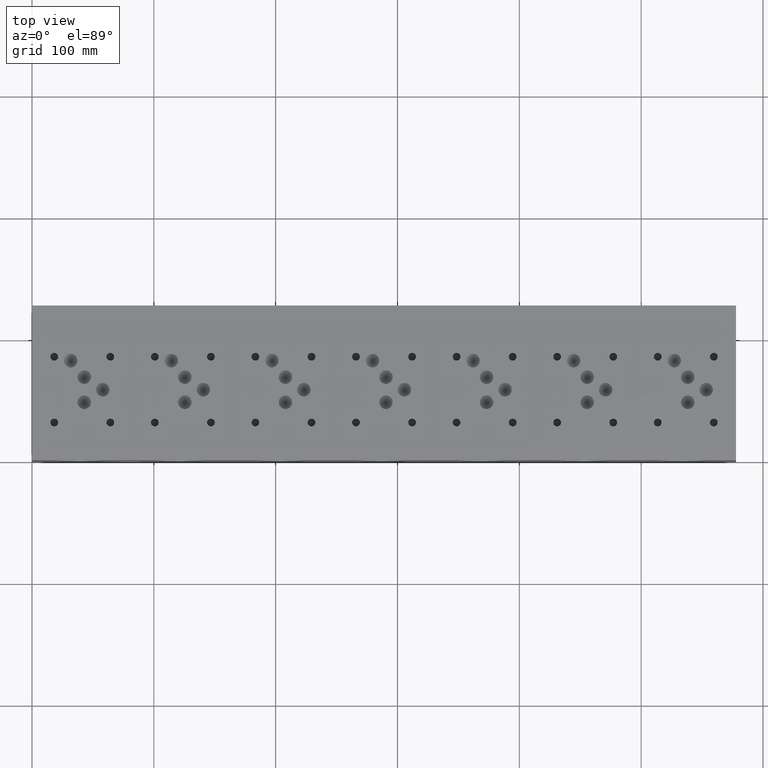
[diagram: clean part render]
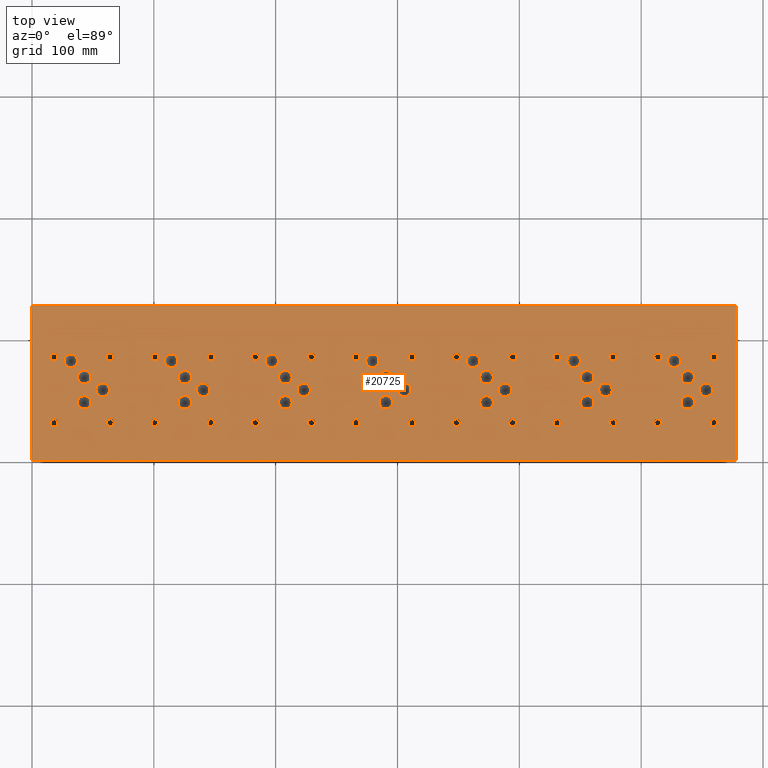
[diagram: same view with one face highlighted and labeled with its STEP entity id]
A machine part, top view. The second image highlights one B-rep face of the part: STEP entity #20725.
In plain terms, the highlighted planar face has unit normal (0, 0, 1).
Its self-contained STEP definition (entity closure, byte-faithful):
#960=CIRCLE('',#21827,5.55625);
#961=CIRCLE('',#21828,5.55625);
#964=CIRCLE('',#21833,5.55625);
#965=CIRCLE('',#21834,5.55625);
#968=CIRCLE('',#21839,5.5626);
#969=CIRCLE('',#21840,5.5626);
#972=CIRCLE('',#21845,5.5626);
#973=CIRCLE('',#21846,5.5626);
#976=CIRCLE('',#21851,5.5626);
#977=CIRCLE('',#21852,5.5626);
#980=CIRCLE('',#21857,5.5626);
#981=CIRCLE('',#21858,5.5626);
#984=CIRCLE('',#21863,5.5626);
#985=CIRCLE('',#21864,5.5626);
#988=CIRCLE('',#21869,5.5626);
#989=CIRCLE('',#21870,5.5626);
#992=CIRCLE('',#21875,5.5626);
#993=CIRCLE('',#21876,5.5626);
#996=CIRCLE('',#21881,5.5626);
#997=CIRCLE('',#21882,5.5626);
#1000=CIRCLE('',#21887,5.5626);
#1001=CIRCLE('',#21888,5.5626);
#1004=CIRCLE('',#21893,5.5626);
#1005=CIRCLE('',#21894,5.5626);
#1008=CIRCLE('',#21899,5.5626);
#1009=CIRCLE('',#21900,5.5626);
#1012=CIRCLE('',#21905,5.5626);
#1013=CIRCLE('',#21906,5.5626);
#1016=CIRCLE('',#21911,5.5626);
#1017=CIRCLE('',#21912,5.5626);
#1020=CIRCLE('',#21917,5.5626);
#1021=CIRCLE('',#21918,5.5626);
#1024=CIRCLE('',#21923,5.5626);
#1025=CIRCLE('',#21924,5.5626);
#1028=CIRCLE('',#21929,5.5626);
#1029=CIRCLE('',#21930,5.5626);
#1032=CIRCLE('',#21935,5.5626);
#1033=CIRCLE('',#21936,5.5626);
#1036=CIRCLE('',#21941,5.5626);
#1037=CIRCLE('',#21942,5.5626);
#1040=CIRCLE('',#21947,5.5626);
#1041=CIRCLE('',#21948,5.5626);
#1044=CIRCLE('',#21953,5.5626);
#1045=CIRCLE('',#21954,5.5626);
#1048=CIRCLE('',#21959,5.5626);
#1049=CIRCLE('',#21960,5.5626);
#1052=CIRCLE('',#21965,5.5626);
#1053=CIRCLE('',#21966,5.5626);
#1056=CIRCLE('',#21971,5.5626);
#1057=CIRCLE('',#21972,5.5626);
#1060=CIRCLE('',#21977,5.5626);
#1061=CIRCLE('',#21978,5.5626);
#1064=CIRCLE('',#21983,5.5626);
#1065=CIRCLE('',#21984,5.5626);
#1068=CIRCLE('',#21989,5.5626);
#1069=CIRCLE('',#21990,5.5626);
#1075=CIRCLE('',#21999,3.175);
#1076=CIRCLE('',#22000,3.175);
#1082=CIRCLE('',#22010,3.175);
#1083=CIRCLE('',#22011,3.175);
#1089=CIRCLE('',#22021,3.175);
#1090=CIRCLE('',#22022,3.175);
#1096=CIRCLE('',#22032,3.175);
#1097=CIRCLE('',#22033,3.175);
#1103=CIRCLE('',#22043,3.175);
#1104=CIRCLE('',#22044,3.175);
#1110=CIRCLE('',#22054,3.175);
#1111=CIRCLE('',#22055,3.175);
#1117=CIRCLE('',#22065,3.175);
#1118=CIRCLE('',#22066,3.175);
#1124=CIRCLE('',#22076,3.175);
#1125=CIRCLE('',#22077,3.175);
#1131=CIRCLE('',#22087,3.175);
#1132=CIRCLE('',#22088,3.175);
#1138=CIRCLE('',#22098,3.175);
#1139=CIRCLE('',#22099,3.175);
#1145=CIRCLE('',#22109,3.175);
#1146=CIRCLE('',#22110,3.175);
#1152=CIRCLE('',#22120,3.175);
#1153=CIRCLE('',#22121,3.175);
#1159=CIRCLE('',#22131,3.175);
#1160=CIRCLE('',#22132,3.175);
#1166=CIRCLE('',#22142,3.175);
#1167=CIRCLE('',#22143,3.175);
#1173=CIRCLE('',#22153,3.175);
#1174=CIRCLE('',#22154,3.175);
#1180=CIRCLE('',#22164,3.175);
#1181=CIRCLE('',#22165,3.175);
#1187=CIRCLE('',#22175,3.175);
#1188=CIRCLE('',#22176,3.175);
#1194=CIRCLE('',#22186,3.175);
#1195=CIRCLE('',#22187,3.175);
#1201=CIRCLE('',#22197,3.175);
#1202=CIRCLE('',#22198,3.175);
#1208=CIRCLE('',#22208,3.175);
#1209=CIRCLE('',#22209,3.175);
#1215=CIRCLE('',#22219,3.175);
#1216=CIRCLE('',#22220,3.175);
#1222=CIRCLE('',#22230,3.175);
#1223=CIRCLE('',#22231,3.175);
#1229=CIRCLE('',#22241,3.175);
#1230=CIRCLE('',#22242,3.175);
#1236=CIRCLE('',#22252,3.175);
#1237=CIRCLE('',#22253,3.175);
#1243=CIRCLE('',#22263,3.175);
#1244=CIRCLE('',#22264,3.175);
#1250=CIRCLE('',#22274,3.175);
#1251=CIRCLE('',#22275,3.175);
#1257=CIRCLE('',#22285,3.175);
#1258=CIRCLE('',#22286,3.175);
#1264=CIRCLE('',#22296,3.175);
#1265=CIRCLE('',#22297,3.175);
#1877=FACE_BOUND('',#4267,.T.);
#1878=FACE_BOUND('',#4268,.T.);
#1879=FACE_BOUND('',#4269,.T.);
#1880=FACE_BOUND('',#4270,.T.);
#1881=FACE_BOUND('',#4271,.T.);
#1882=FACE_BOUND('',#4272,.T.);
#1883=FACE_BOUND('',#4273,.T.);
#1884=FACE_BOUND('',#4274,.T.);
#1885=FACE_BOUND('',#4275,.T.);
#1886=FACE_BOUND('',#4276,.T.);
#1887=FACE_BOUND('',#4277,.T.);
#1888=FACE_BOUND('',#4278,.T.);
#1889=FACE_BOUND('',#4279,.T.);
#1890=FACE_BOUND('',#4280,.T.);
#1891=FACE_BOUND('',#4281,.T.);
#1892=FACE_BOUND('',#4282,.T.);
#1893=FACE_BOUND('',#4283,.T.);
#1894=FACE_BOUND('',#4284,.T.);
#1895=FACE_BOUND('',#4285,.T.);
#1896=FACE_BOUND('',#4286,.T.);
#1897=FACE_BOUND('',#4287,.T.);
#1898=FACE_BOUND('',#4288,.T.);
#1899=FACE_BOUND('',#4289,.T.);
#1900=FACE_BOUND('',#4290,.T.);
#1901=FACE_BOUND('',#4291,.T.);
#1902=FACE_BOUND('',#4292,.T.);
#1903=FACE_BOUND('',#4293,.T.);
#1904=FACE_BOUND('',#4294,.T.);
#1905=FACE_BOUND('',#4295,.T.);
#1906=FACE_BOUND('',#4296,.T.);
#1907=FACE_BOUND('',#4297,.T.);
#1908=FACE_BOUND('',#4298,.T.);
#1909=FACE_BOUND('',#4299,.T.);
#1910=FACE_BOUND('',#4300,.T.);
#1911=FACE_BOUND('',#4301,.T.);
#1912=FACE_BOUND('',#4302,.T.);
#1913=FACE_BOUND('',#4303,.T.);
#1914=FACE_BOUND('',#4304,.T.);
#1915=FACE_BOUND('',#4305,.T.);
#1916=FACE_BOUND('',#4306,.T.);
#1917=FACE_BOUND('',#4307,.T.);
#1918=FACE_BOUND('',#4308,.T.);
#1919=FACE_BOUND('',#4309,.T.);
#1920=FACE_BOUND('',#4310,.T.);
#1921=FACE_BOUND('',#4311,.T.);
#1922=FACE_BOUND('',#4312,.T.);
#1923=FACE_BOUND('',#4313,.T.);
#1924=FACE_BOUND('',#4314,.T.);
#1925=FACE_BOUND('',#4315,.T.);
#1926=FACE_BOUND('',#4316,.T.);
#1927=FACE_BOUND('',#4317,.T.);
#1928=FACE_BOUND('',#4318,.T.);
#1929=FACE_BOUND('',#4319,.T.);
#1930=FACE_BOUND('',#4320,.T.);
#1931=FACE_BOUND('',#4321,.T.);
#1932=FACE_BOUND('',#4322,.T.);
#3017=FACE_OUTER_BOUND('',#4266,.T.);
#4266=EDGE_LOOP('',(#18331,#18332,#18333,#18334));
#4267=EDGE_LOOP('',(#18335,#18336));
#4268=EDGE_LOOP('',(#18337,#18338));
#4269=EDGE_LOOP('',(#18339,#18340));
#4270=EDGE_LOOP('',(#18341,#18342));
#4271=EDGE_LOOP('',(#18343,#18344));
#4272=EDGE_LOOP('',(#18345,#18346));
#4273=EDGE_LOOP('',(#18347,#18348));
#4274=EDGE_LOOP('',(#18349,#18350));
#4275=EDGE_LOOP('',(#18351,#18352));
#4276=EDGE_LOOP('',(#18353,#18354));
#4277=EDGE_LOOP('',(#18355,#18356));
#4278=EDGE_LOOP('',(#18357,#18358));
#4279=EDGE_LOOP('',(#18359,#18360));
#4280=EDGE_LOOP('',(#18361,#18362));
#4281=EDGE_LOOP('',(#18363,#18364));
#4282=EDGE_LOOP('',(#18365,#18366));
#4283=EDGE_LOOP('',(#18367,#18368));
#4284=EDGE_LOOP('',(#18369,#18370));
#4285=EDGE_LOOP('',(#18371,#18372));
#4286=EDGE_LOOP('',(#18373,#18374));
#4287=EDGE_LOOP('',(#18375,#18376));
#4288=EDGE_LOOP('',(#18377,#18378));
#4289=EDGE_LOOP('',(#18379,#18380));
#4290=EDGE_LOOP('',(#18381,#18382));
#4291=EDGE_LOOP('',(#18383,#18384));
#4292=EDGE_LOOP('',(#18385,#18386));
#4293=EDGE_LOOP('',(#18387,#18388));
#4294=EDGE_LOOP('',(#18389,#18390));
#4295=EDGE_LOOP('',(#18391,#18392));
#4296=EDGE_LOOP('',(#18393,#18394));
#4297=EDGE_LOOP('',(#18395,#18396));
#4298=EDGE_LOOP('',(#18397,#18398));
#4299=EDGE_LOOP('',(#18399,#18400));
#4300=EDGE_LOOP('',(#18401,#18402));
#4301=EDGE_LOOP('',(#18403,#18404));
#4302=EDGE_LOOP('',(#18405,#18406));
#4303=EDGE_LOOP('',(#18407,#18408));
#4304=EDGE_LOOP('',(#18409,#18410));
#4305=EDGE_LOOP('',(#18411,#18412));
#4306=EDGE_LOOP('',(#18413,#18414));
#4307=EDGE_LOOP('',(#18415,#18416));
#4308=EDGE_LOOP('',(#18417,#18418));
#4309=EDGE_LOOP('',(#18419,#18420));
#4310=EDGE_LOOP('',(#18421,#18422));
#4311=EDGE_LOOP('',(#18423,#18424));
#4312=EDGE_LOOP('',(#18425,#18426));
#4313=EDGE_LOOP('',(#18427,#18428));
#4314=EDGE_LOOP('',(#18429,#18430));
#4315=EDGE_LOOP('',(#18431,#18432));
#4316=EDGE_LOOP('',(#18433,#18434));
#4317=EDGE_LOOP('',(#18435,#18436));
#4318=EDGE_LOOP('',(#18437,#18438));
#4319=EDGE_LOOP('',(#18439,#18440));
#4320=EDGE_LOOP('',(#18441,#18442));
#4321=EDGE_LOOP('',(#18443,#18444));
#4322=EDGE_LOOP('',(#18445,#18446));
#4359=LINE('',#27242,#6091);
#4728=LINE('',#29008,#6460);
#4786=LINE('',#29279,#6518);
#6055=LINE('',#36060,#7787);
#6091=VECTOR('',#22368,10.);
#6460=VECTOR('',#22861,10.);
#6518=VECTOR('',#22973,10.);
#7787=VECTOR('',#27158,10.);
#7812=VERTEX_POINT('',#27239);
#7813=VERTEX_POINT('',#27241);
#8324=VERTEX_POINT('',#29006);
#8382=VERTEX_POINT('',#29278);
#9444=VERTEX_POINT('',#35085);
#9445=VERTEX_POINT('',#35086);
#9449=VERTEX_POINT('',#35098);
#9450=VERTEX_POINT('',#35099);
#9454=VERTEX_POINT('',#35111);
#9455=VERTEX_POINT('',#35112);
#9459=VERTEX_POINT('',#35124);
#9460=VERTEX_POINT('',#35125);
#9464=VERTEX_POINT('',#35137);
#9465=VERTEX_POINT('',#35138);
#9469=VERTEX_POINT('',#35150);
#9470=VERTEX_POINT('',#35151);
#9474=VERTEX_POINT('',#35163);
#9475=VERTEX_POINT('',#35164);
#9479=VERTEX_POINT('',#35176);
#9480=VERTEX_POINT('',#35177);
#9484=VERTEX_POINT('',#35189);
#9485=VERTEX_POINT('',#35190);
#9489=VERTEX_POINT('',#35202);
#9490=VERTEX_POINT('',#35203);
#9494=VERTEX_POINT('',#35215);
#9495=VERTEX_POINT('',#35216);
#9499=VERTEX_POINT('',#35228);
#9500=VERTEX_POINT('',#35229);
#9504=VERTEX_POINT('',#35241);
#9505=VERTEX_POINT('',#35242);
#9509=VERTEX_POINT('',#35254);
#9510=VERTEX_POINT('',#35255);
#9514=VERTEX_POINT('',#35267);
#9515=VERTEX_POINT('',#35268);
#9519=VERTEX_POINT('',#35280);
#9520=VERTEX_POINT('',#35281);
#9524=VERTEX_POINT('',#35293);
#9525=VERTEX_POINT('',#35294);
#9529=VERTEX_POINT('',#35306);
#9530=VERTEX_POINT('',#35307);
#9534=VERTEX_POINT('',#35319);
#9535=VERTEX_POINT('',#35320);
#9539=VERTEX_POINT('',#35332);
#9540=VERTEX_POINT('',#35333);
#9544=VERTEX_POINT('',#35345);
#9545=VERTEX_POINT('',#35346);
#9549=VERTEX_POINT('',#35358);
#9550=VERTEX_POINT('',#35359);
#9554=VERTEX_POINT('',#35371);
#9555=VERTEX_POINT('',#35372);
#9559=VERTEX_POINT('',#35384);
#9560=VERTEX_POINT('',#35385);
#9564=VERTEX_POINT('',#35397);
#9565=VERTEX_POINT('',#35398);
#9569=VERTEX_POINT('',#35410);
#9570=VERTEX_POINT('',#35411);
#9574=VERTEX_POINT('',#35423);
#9575=VERTEX_POINT('',#35424);
#9579=VERTEX_POINT('',#35436);
#9580=VERTEX_POINT('',#35437);
#9587=VERTEX_POINT('',#35456);
#9588=VERTEX_POINT('',#35457);
#9595=VERTEX_POINT('',#35478);
#9596=VERTEX_POINT('',#35479);
#9603=VERTEX_POINT('',#35500);
#9604=VERTEX_POINT('',#35501);
#9611=VERTEX_POINT('',#35522);
#9612=VERTEX_POINT('',#35523);
#9619=VERTEX_POINT('',#35544);
#9620=VERTEX_POINT('',#35545);
#9627=VERTEX_POINT('',#35566);
#9628=VERTEX_POINT('',#35567);
#9635=VERTEX_POINT('',#35588);
#9636=VERTEX_POINT('',#35589);
#9643=VERTEX_POINT('',#35610);
#9644=VERTEX_POINT('',#35611);
#9651=VERTEX_POINT('',#35632);
#9652=VERTEX_POINT('',#35633);
#9659=VERTEX_POINT('',#35654);
#9660=VERTEX_POINT('',#35655);
#9667=VERTEX_POINT('',#35676);
#9668=VERTEX_POINT('',#35677);
#9675=VERTEX_POINT('',#35698);
#9676=VERTEX_POINT('',#35699);
#9683=VERTEX_POINT('',#35720);
#9684=VERTEX_POINT('',#35721);
#9691=VERTEX_POINT('',#35742);
#9692=VERTEX_POINT('',#35743);
#9699=VERTEX_POINT('',#35764);
#9700=VERTEX_POINT('',#35765);
#9707=VERTEX_POINT('',#35786);
#9708=VERTEX_POINT('',#35787);
#9715=VERTEX_POINT('',#35808);
#9716=VERTEX_POINT('',#35809);
#9723=VERTEX_POINT('',#35830);
#9724=VERTEX_POINT('',#35831);
#9731=VERTEX_POINT('',#35852);
#9732=VERTEX_POINT('',#35853);
#9739=VERTEX_POINT('',#35874);
#9740=VERTEX_POINT('',#35875);
#9747=VERTEX_POINT('',#35896);
#9748=VERTEX_POINT('',#35897);
#9755=VERTEX_POINT('',#35918);
#9756=VERTEX_POINT('',#35919);
#9763=VERTEX_POINT('',#35940);
#9764=VERTEX_POINT('',#35941);
#9771=VERTEX_POINT('',#35962);
#9772=VERTEX_POINT('',#35963);
#9779=VERTEX_POINT('',#35984);
#9780=VERTEX_POINT('',#35985);
#9787=VERTEX_POINT('',#36006);
#9788=VERTEX_POINT('',#36007);
#9795=VERTEX_POINT('',#36028);
#9796=VERTEX_POINT('',#36029);
#9803=VERTEX_POINT('',#36050);
#9804=VERTEX_POINT('',#36051);
#9840=EDGE_CURVE('',#7813,#7812,#4359,.T.);
#10401=EDGE_CURVE('',#7812,#8324,#4728,.T.);
#10483=EDGE_CURVE('',#8382,#7813,#4786,.T.);
#12240=EDGE_CURVE('',#9444,#9445,#960,.T.);
#12241=EDGE_CURVE('',#9445,#9444,#961,.T.);
#12246=EDGE_CURVE('',#9449,#9450,#964,.T.);
#12247=EDGE_CURVE('',#9450,#9449,#965,.T.);
#12252=EDGE_CURVE('',#9454,#9455,#968,.T.);
#12253=EDGE_CURVE('',#9455,#9454,#969,.T.);
#12258=EDGE_CURVE('',#9459,#9460,#972,.T.);
#12259=EDGE_CURVE('',#9460,#9459,#973,.T.);
#12264=EDGE_CURVE('',#9464,#9465,#976,.T.);
#12265=EDGE_CURVE('',#9465,#9464,#977,.T.);
#12270=EDGE_CURVE('',#9469,#9470,#980,.T.);
#12271=EDGE_CURVE('',#9470,#9469,#981,.T.);
#12276=EDGE_CURVE('',#9474,#9475,#984,.T.);
#12277=EDGE_CURVE('',#9475,#9474,#985,.T.);
#12282=EDGE_CURVE('',#9479,#9480,#988,.T.);
#12283=EDGE_CURVE('',#9480,#9479,#989,.T.);
#12288=EDGE_CURVE('',#9484,#9485,#992,.T.);
#12289=EDGE_CURVE('',#9485,#9484,#993,.T.);
#12294=EDGE_CURVE('',#9489,#9490,#996,.T.);
#12295=EDGE_CURVE('',#9490,#9489,#997,.T.);
#12300=EDGE_CURVE('',#9494,#9495,#1000,.T.);
#12301=EDGE_CURVE('',#9495,#9494,#1001,.T.);
#12306=EDGE_CURVE('',#9499,#9500,#1004,.T.);
#12307=EDGE_CURVE('',#9500,#9499,#1005,.T.);
#12312=EDGE_CURVE('',#9504,#9505,#1008,.T.);
#12313=EDGE_CURVE('',#9505,#9504,#1009,.T.);
#12318=EDGE_CURVE('',#9509,#9510,#1012,.T.);
#12319=EDGE_CURVE('',#9510,#9509,#1013,.T.);
#12324=EDGE_CURVE('',#9514,#9515,#1016,.T.);
#12325=EDGE_CURVE('',#9515,#9514,#1017,.T.);
#12330=EDGE_CURVE('',#9519,#9520,#1020,.T.);
#12331=EDGE_CURVE('',#9520,#9519,#1021,.T.);
#12336=EDGE_CURVE('',#9524,#9525,#1024,.T.);
#12337=EDGE_CURVE('',#9525,#9524,#1025,.T.);
#12342=EDGE_CURVE('',#9529,#9530,#1028,.T.);
#12343=EDGE_CURVE('',#9530,#9529,#1029,.T.);
#12348=EDGE_CURVE('',#9534,#9535,#1032,.T.);
#12349=EDGE_CURVE('',#9535,#9534,#1033,.T.);
#12354=EDGE_CURVE('',#9539,#9540,#1036,.T.);
#12355=EDGE_CURVE('',#9540,#9539,#1037,.T.);
#12360=EDGE_CURVE('',#9544,#9545,#1040,.T.);
#12361=EDGE_CURVE('',#9545,#9544,#1041,.T.);
#12366=EDGE_CURVE('',#9549,#9550,#1044,.T.);
#12367=EDGE_CURVE('',#9550,#9549,#1045,.T.);
#12372=EDGE_CURVE('',#9554,#9555,#1048,.T.);
#12373=EDGE_CURVE('',#9555,#9554,#1049,.T.);
#12378=EDGE_CURVE('',#9559,#9560,#1052,.T.);
#12379=EDGE_CURVE('',#9560,#9559,#1053,.T.);
#12384=EDGE_CURVE('',#9564,#9565,#1056,.T.);
#12385=EDGE_CURVE('',#9565,#9564,#1057,.T.);
#12390=EDGE_CURVE('',#9569,#9570,#1060,.T.);
#12391=EDGE_CURVE('',#9570,#9569,#1061,.T.);
#12396=EDGE_CURVE('',#9574,#9575,#1064,.T.);
#12397=EDGE_CURVE('',#9575,#9574,#1065,.T.);
#12402=EDGE_CURVE('',#9579,#9580,#1068,.T.);
#12403=EDGE_CURVE('',#9580,#9579,#1069,.T.);
#12411=EDGE_CURVE('',#9587,#9588,#1075,.T.);
#12412=EDGE_CURVE('',#9588,#9587,#1076,.T.);
#12421=EDGE_CURVE('',#9595,#9596,#1082,.T.);
#12422=EDGE_CURVE('',#9596,#9595,#1083,.T.);
#12431=EDGE_CURVE('',#9603,#9604,#1089,.T.);
#12432=EDGE_CURVE('',#9604,#9603,#1090,.T.);
#12441=EDGE_CURVE('',#9611,#9612,#1096,.T.);
#12442=EDGE_CURVE('',#9612,#9611,#1097,.T.);
#12451=EDGE_CURVE('',#9619,#9620,#1103,.T.);
#12452=EDGE_CURVE('',#9620,#9619,#1104,.T.);
#12461=EDGE_CURVE('',#9627,#9628,#1110,.T.);
#12462=EDGE_CURVE('',#9628,#9627,#1111,.T.);
#12471=EDGE_CURVE('',#9635,#9636,#1117,.T.);
#12472=EDGE_CURVE('',#9636,#9635,#1118,.T.);
#12481=EDGE_CURVE('',#9643,#9644,#1124,.T.);
#12482=EDGE_CURVE('',#9644,#9643,#1125,.T.);
#12491=EDGE_CURVE('',#9651,#9652,#1131,.T.);
#12492=EDGE_CURVE('',#9652,#9651,#1132,.T.);
#12501=EDGE_CURVE('',#9659,#9660,#1138,.T.);
#12502=EDGE_CURVE('',#9660,#9659,#1139,.T.);
#12511=EDGE_CURVE('',#9667,#9668,#1145,.T.);
#12512=EDGE_CURVE('',#9668,#9667,#1146,.T.);
#12521=EDGE_CURVE('',#9675,#9676,#1152,.T.);
#12522=EDGE_CURVE('',#9676,#9675,#1153,.T.);
#12531=EDGE_CURVE('',#9683,#9684,#1159,.T.);
#12532=EDGE_CURVE('',#9684,#9683,#1160,.T.);
#12541=EDGE_CURVE('',#9691,#9692,#1166,.T.);
#12542=EDGE_CURVE('',#9692,#9691,#1167,.T.);
#12551=EDGE_CURVE('',#9699,#9700,#1173,.T.);
#12552=EDGE_CURVE('',#9700,#9699,#1174,.T.);
#12561=EDGE_CURVE('',#9707,#9708,#1180,.T.);
#12562=EDGE_CURVE('',#9708,#9707,#1181,.T.);
#12571=EDGE_CURVE('',#9715,#9716,#1187,.T.);
#12572=EDGE_CURVE('',#9716,#9715,#1188,.T.);
#12581=EDGE_CURVE('',#9723,#9724,#1194,.T.);
#12582=EDGE_CURVE('',#9724,#9723,#1195,.T.);
#12591=EDGE_CURVE('',#9731,#9732,#1201,.T.);
#12592=EDGE_CURVE('',#9732,#9731,#1202,.T.);
#12601=EDGE_CURVE('',#9739,#9740,#1208,.T.);
#12602=EDGE_CURVE('',#9740,#9739,#1209,.T.);
#12611=EDGE_CURVE('',#9747,#9748,#1215,.T.);
#12612=EDGE_CURVE('',#9748,#9747,#1216,.T.);
#12621=EDGE_CURVE('',#9755,#9756,#1222,.T.);
#12622=EDGE_CURVE('',#9756,#9755,#1223,.T.);
#12631=EDGE_CURVE('',#9763,#9764,#1229,.T.);
#12632=EDGE_CURVE('',#9764,#9763,#1230,.T.);
#12641=EDGE_CURVE('',#9771,#9772,#1236,.T.);
#12642=EDGE_CURVE('',#9772,#9771,#1237,.T.);
#12651=EDGE_CURVE('',#9779,#9780,#1243,.T.);
#12652=EDGE_CURVE('',#9780,#9779,#1244,.T.);
#12661=EDGE_CURVE('',#9787,#9788,#1250,.T.);
#12662=EDGE_CURVE('',#9788,#9787,#1251,.T.);
#12671=EDGE_CURVE('',#9795,#9796,#1257,.T.);
#12672=EDGE_CURVE('',#9796,#9795,#1258,.T.);
#12681=EDGE_CURVE('',#9803,#9804,#1264,.T.);
#12682=EDGE_CURVE('',#9804,#9803,#1265,.T.);
#12686=EDGE_CURVE('',#8324,#8382,#6055,.T.);
#18331=ORIENTED_EDGE('',*,*,#9840,.T.);
#18332=ORIENTED_EDGE('',*,*,#10401,.T.);
#18333=ORIENTED_EDGE('',*,*,#12686,.T.);
#18334=ORIENTED_EDGE('',*,*,#10483,.T.);
#18335=ORIENTED_EDGE('',*,*,#12240,.T.);
#18336=ORIENTED_EDGE('',*,*,#12241,.T.);
#18337=ORIENTED_EDGE('',*,*,#12246,.T.);
#18338=ORIENTED_EDGE('',*,*,#12247,.T.);
#18339=ORIENTED_EDGE('',*,*,#12252,.T.);
#18340=ORIENTED_EDGE('',*,*,#12253,.T.);
#18341=ORIENTED_EDGE('',*,*,#12258,.T.);
#18342=ORIENTED_EDGE('',*,*,#12259,.T.);
#18343=ORIENTED_EDGE('',*,*,#12264,.T.);
#18344=ORIENTED_EDGE('',*,*,#12265,.T.);
#18345=ORIENTED_EDGE('',*,*,#12270,.T.);
#18346=ORIENTED_EDGE('',*,*,#12271,.T.);
#18347=ORIENTED_EDGE('',*,*,#12276,.T.);
#18348=ORIENTED_EDGE('',*,*,#12277,.T.);
#18349=ORIENTED_EDGE('',*,*,#12282,.T.);
#18350=ORIENTED_EDGE('',*,*,#12283,.T.);
#18351=ORIENTED_EDGE('',*,*,#12288,.T.);
#18352=ORIENTED_EDGE('',*,*,#12289,.T.);
#18353=ORIENTED_EDGE('',*,*,#12294,.T.);
#18354=ORIENTED_EDGE('',*,*,#12295,.T.);
#18355=ORIENTED_EDGE('',*,*,#12300,.T.);
#18356=ORIENTED_EDGE('',*,*,#12301,.T.);
#18357=ORIENTED_EDGE('',*,*,#12306,.T.);
#18358=ORIENTED_EDGE('',*,*,#12307,.T.);
#18359=ORIENTED_EDGE('',*,*,#12312,.T.);
#18360=ORIENTED_EDGE('',*,*,#12313,.T.);
#18361=ORIENTED_EDGE('',*,*,#12318,.T.);
#18362=ORIENTED_EDGE('',*,*,#12319,.T.);
#18363=ORIENTED_EDGE('',*,*,#12324,.T.);
#18364=ORIENTED_EDGE('',*,*,#12325,.T.);
#18365=ORIENTED_EDGE('',*,*,#12330,.T.);
#18366=ORIENTED_EDGE('',*,*,#12331,.T.);
#18367=ORIENTED_EDGE('',*,*,#12336,.T.);
#18368=ORIENTED_EDGE('',*,*,#12337,.T.);
#18369=ORIENTED_EDGE('',*,*,#12342,.T.);
#18370=ORIENTED_EDGE('',*,*,#12343,.T.);
#18371=ORIENTED_EDGE('',*,*,#12348,.T.);
#18372=ORIENTED_EDGE('',*,*,#12349,.T.);
#18373=ORIENTED_EDGE('',*,*,#12354,.T.);
#18374=ORIENTED_EDGE('',*,*,#12355,.T.);
#18375=ORIENTED_EDGE('',*,*,#12360,.T.);
#18376=ORIENTED_EDGE('',*,*,#12361,.T.);
#18377=ORIENTED_EDGE('',*,*,#12366,.T.);
#18378=ORIENTED_EDGE('',*,*,#12367,.T.);
#18379=ORIENTED_EDGE('',*,*,#12372,.T.);
#18380=ORIENTED_EDGE('',*,*,#12373,.T.);
#18381=ORIENTED_EDGE('',*,*,#12378,.T.);
#18382=ORIENTED_EDGE('',*,*,#12379,.T.);
#18383=ORIENTED_EDGE('',*,*,#12384,.T.);
#18384=ORIENTED_EDGE('',*,*,#12385,.T.);
#18385=ORIENTED_EDGE('',*,*,#12390,.T.);
#18386=ORIENTED_EDGE('',*,*,#12391,.T.);
#18387=ORIENTED_EDGE('',*,*,#12396,.T.);
#18388=ORIENTED_EDGE('',*,*,#12397,.T.);
#18389=ORIENTED_EDGE('',*,*,#12402,.T.);
#18390=ORIENTED_EDGE('',*,*,#12403,.T.);
#18391=ORIENTED_EDGE('',*,*,#12411,.T.);
#18392=ORIENTED_EDGE('',*,*,#12412,.T.);
#18393=ORIENTED_EDGE('',*,*,#12421,.T.);
#18394=ORIENTED_EDGE('',*,*,#12422,.T.);
#18395=ORIENTED_EDGE('',*,*,#12431,.T.);
#18396=ORIENTED_EDGE('',*,*,#12432,.T.);
#18397=ORIENTED_EDGE('',*,*,#12441,.T.);
#18398=ORIENTED_EDGE('',*,*,#12442,.T.);
#18399=ORIENTED_EDGE('',*,*,#12451,.T.);
#18400=ORIENTED_EDGE('',*,*,#12452,.T.);
#18401=ORIENTED_EDGE('',*,*,#12461,.T.);
#18402=ORIENTED_EDGE('',*,*,#12462,.T.);
#18403=ORIENTED_EDGE('',*,*,#12471,.T.);
#18404=ORIENTED_EDGE('',*,*,#12472,.T.);
#18405=ORIENTED_EDGE('',*,*,#12481,.T.);
#18406=ORIENTED_EDGE('',*,*,#12482,.T.);
#18407=ORIENTED_EDGE('',*,*,#12491,.T.);
#18408=ORIENTED_EDGE('',*,*,#12492,.T.);
#18409=ORIENTED_EDGE('',*,*,#12501,.T.);
#18410=ORIENTED_EDGE('',*,*,#12502,.T.);
#18411=ORIENTED_EDGE('',*,*,#12511,.T.);
#18412=ORIENTED_EDGE('',*,*,#12512,.T.);
#18413=ORIENTED_EDGE('',*,*,#12521,.T.);
#18414=ORIENTED_EDGE('',*,*,#12522,.T.);
#18415=ORIENTED_EDGE('',*,*,#12531,.T.);
#18416=ORIENTED_EDGE('',*,*,#12532,.T.);
#18417=ORIENTED_EDGE('',*,*,#12541,.T.);
#18418=ORIENTED_EDGE('',*,*,#12542,.T.);
#18419=ORIENTED_EDGE('',*,*,#12551,.T.);
#18420=ORIENTED_EDGE('',*,*,#12552,.T.);
#18421=ORIENTED_EDGE('',*,*,#12561,.T.);
#18422=ORIENTED_EDGE('',*,*,#12562,.T.);
#18423=ORIENTED_EDGE('',*,*,#12571,.T.);
#18424=ORIENTED_EDGE('',*,*,#12572,.T.);
#18425=ORIENTED_EDGE('',*,*,#12581,.T.);
#18426=ORIENTED_EDGE('',*,*,#12582,.T.);
#18427=ORIENTED_EDGE('',*,*,#12591,.T.);
#18428=ORIENTED_EDGE('',*,*,#12592,.T.);
#18429=ORIENTED_EDGE('',*,*,#12601,.T.);
#18430=ORIENTED_EDGE('',*,*,#12602,.T.);
#18431=ORIENTED_EDGE('',*,*,#12611,.T.);
#18432=ORIENTED_EDGE('',*,*,#12612,.T.);
#18433=ORIENTED_EDGE('',*,*,#12621,.T.);
#18434=ORIENTED_EDGE('',*,*,#12622,.T.);
#18435=ORIENTED_EDGE('',*,*,#12631,.T.);
#18436=ORIENTED_EDGE('',*,*,#12632,.T.);
#18437=ORIENTED_EDGE('',*,*,#12641,.T.);
#18438=ORIENTED_EDGE('',*,*,#12642,.T.);
#18439=ORIENTED_EDGE('',*,*,#12651,.T.);
#18440=ORIENTED_EDGE('',*,*,#12652,.T.);
#18441=ORIENTED_EDGE('',*,*,#12661,.T.);
#18442=ORIENTED_EDGE('',*,*,#12662,.T.);
#18443=ORIENTED_EDGE('',*,*,#12671,.T.);
#18444=ORIENTED_EDGE('',*,*,#12672,.T.);
#18445=ORIENTED_EDGE('',*,*,#12681,.T.);
#18446=ORIENTED_EDGE('',*,*,#12682,.T.);
#18985=PLANE('',#22303);
#20725=ADVANCED_FACE('',(#3017,#1877,#1878,#1879,#1880,#1881,#1882,#1883,
#1884,#1885,#1886,#1887,#1888,#1889,#1890,#1891,#1892,#1893,#1894,#1895,
#1896,#1897,#1898,#1899,#1900,#1901,#1902,#1903,#1904,#1905,#1906,#1907,
#1908,#1909,#1910,#1911,#1912,#1913,#1914,#1915,#1916,#1917,#1918,#1919,
#1920,#1921,#1922,#1923,#1924,#1925,#1926,#1927,#1928,#1929,#1930,#1931,
#1932),#18985,.T.);
#21827=AXIS2_PLACEMENT_3D('',#35087,#26070,#26071);
#21828=AXIS2_PLACEMENT_3D('',#35088,#26072,#26073);
#21833=AXIS2_PLACEMENT_3D('',#35100,#26084,#26085);
#21834=AXIS2_PLACEMENT_3D('',#35101,#26086,#26087);
#21839=AXIS2_PLACEMENT_3D('',#35113,#26098,#26099);
#21840=AXIS2_PLACEMENT_3D('',#35114,#26100,#26101);
#21845=AXIS2_PLACEMENT_3D('',#35126,#26112,#26113);
#21846=AXIS2_PLACEMENT_3D('',#35127,#26114,#26115);
#21851=AXIS2_PLACEMENT_3D('',#35139,#26126,#26127);
#21852=AXIS2_PLACEMENT_3D('',#35140,#26128,#26129);
#21857=AXIS2_PLACEMENT_3D('',#35152,#26140,#26141);
#21858=AXIS2_PLACEMENT_3D('',#35153,#26142,#26143);
#21863=AXIS2_PLACEMENT_3D('',#35165,#26154,#26155);
#21864=AXIS2_PLACEMENT_3D('',#35166,#26156,#26157);
#21869=AXIS2_PLACEMENT_3D('',#35178,#26168,#26169);
#21870=AXIS2_PLACEMENT_3D('',#35179,#26170,#26171);
#21875=AXIS2_PLACEMENT_3D('',#35191,#26182,#26183);
#21876=AXIS2_PLACEMENT_3D('',#35192,#26184,#26185);
#21881=AXIS2_PLACEMENT_3D('',#35204,#26196,#26197);
#21882=AXIS2_PLACEMENT_3D('',#35205,#26198,#26199);
#21887=AXIS2_PLACEMENT_3D('',#35217,#26210,#26211);
#21888=AXIS2_PLACEMENT_3D('',#35218,#26212,#26213);
#21893=AXIS2_PLACEMENT_3D('',#35230,#26224,#26225);
#21894=AXIS2_PLACEMENT_3D('',#35231,#26226,#26227);
#21899=AXIS2_PLACEMENT_3D('',#35243,#26238,#26239);
#21900=AXIS2_PLACEMENT_3D('',#35244,#26240,#26241);
#21905=AXIS2_PLACEMENT_3D('',#35256,#26252,#26253);
#21906=AXIS2_PLACEMENT_3D('',#35257,#26254,#26255);
#21911=AXIS2_PLACEMENT_3D('',#35269,#26266,#26267);
#21912=AXIS2_PLACEMENT_3D('',#35270,#26268,#26269);
#21917=AXIS2_PLACEMENT_3D('',#35282,#26280,#26281);
#21918=AXIS2_PLACEMENT_3D('',#35283,#26282,#26283);
#21923=AXIS2_PLACEMENT_3D('',#35295,#26294,#26295);
#21924=AXIS2_PLACEMENT_3D('',#35296,#26296,#26297);
#21929=AXIS2_PLACEMENT_3D('',#35308,#26308,#26309);
#21930=AXIS2_PLACEMENT_3D('',#35309,#26310,#26311);
#21935=AXIS2_PLACEMENT_3D('',#35321,#26322,#26323);
#21936=AXIS2_PLACEMENT_3D('',#35322,#26324,#26325);
#21941=AXIS2_PLACEMENT_3D('',#35334,#26336,#26337);
#21942=AXIS2_PLACEMENT_3D('',#35335,#26338,#26339);
#21947=AXIS2_PLACEMENT_3D('',#35347,#26350,#26351);
#21948=AXIS2_PLACEMENT_3D('',#35348,#26352,#26353);
#21953=AXIS2_PLACEMENT_3D('',#35360,#26364,#26365);
#21954=AXIS2_PLACEMENT_3D('',#35361,#26366,#26367);
#21959=AXIS2_PLACEMENT_3D('',#35373,#26378,#26379);
#21960=AXIS2_PLACEMENT_3D('',#35374,#26380,#26381);
#21965=AXIS2_PLACEMENT_3D('',#35386,#26392,#26393);
#21966=AXIS2_PLACEMENT_3D('',#35387,#26394,#26395);
#21971=AXIS2_PLACEMENT_3D('',#35399,#26406,#26407);
#21972=AXIS2_PLACEMENT_3D('',#35400,#26408,#26409);
#21977=AXIS2_PLACEMENT_3D('',#35412,#26420,#26421);
#21978=AXIS2_PLACEMENT_3D('',#35413,#26422,#26423);
#21983=AXIS2_PLACEMENT_3D('',#35425,#26434,#26435);
#21984=AXIS2_PLACEMENT_3D('',#35426,#26436,#26437);
#21989=AXIS2_PLACEMENT_3D('',#35438,#26448,#26449);
#21990=AXIS2_PLACEMENT_3D('',#35439,#26450,#26451);
#21999=AXIS2_PLACEMENT_3D('',#35458,#26470,#26471);
#22000=AXIS2_PLACEMENT_3D('',#35459,#26472,#26473);
#22010=AXIS2_PLACEMENT_3D('',#35480,#26495,#26496);
#22011=AXIS2_PLACEMENT_3D('',#35481,#26497,#26498);
#22021=AXIS2_PLACEMENT_3D('',#35502,#26520,#26521);
#22022=AXIS2_PLACEMENT_3D('',#35503,#26522,#26523);
#22032=AXIS2_PLACEMENT_3D('',#35524,#26545,#26546);
#22033=AXIS2_PLACEMENT_3D('',#35525,#26547,#26548);
#22043=AXIS2_PLACEMENT_3D('',#35546,#26570,#26571);
#22044=AXIS2_PLACEMENT_3D('',#35547,#26572,#26573);
#22054=AXIS2_PLACEMENT_3D('',#35568,#26595,#26596);
#22055=AXIS2_PLACEMENT_3D('',#35569,#26597,#26598);
#22065=AXIS2_PLACEMENT_3D('',#35590,#26620,#26621);
#22066=AXIS2_PLACEMENT_3D('',#35591,#26622,#26623);
#22076=AXIS2_PLACEMENT_3D('',#35612,#26645,#26646);
#22077=AXIS2_PLACEMENT_3D('',#35613,#26647,#26648);
#22087=AXIS2_PLACEMENT_3D('',#35634,#26670,#26671);
#22088=AXIS2_PLACEMENT_3D('',#35635,#26672,#26673);
#22098=AXIS2_PLACEMENT_3D('',#35656,#26695,#26696);
#22099=AXIS2_PLACEMENT_3D('',#35657,#26697,#26698);
#22109=AXIS2_PLACEMENT_3D('',#35678,#26720,#26721);
#22110=AXIS2_PLACEMENT_3D('',#35679,#26722,#26723);
#22120=AXIS2_PLACEMENT_3D('',#35700,#26745,#26746);
#22121=AXIS2_PLACEMENT_3D('',#35701,#26747,#26748);
#22131=AXIS2_PLACEMENT_3D('',#35722,#26770,#26771);
#22132=AXIS2_PLACEMENT_3D('',#35723,#26772,#26773);
#22142=AXIS2_PLACEMENT_3D('',#35744,#26795,#26796);
#22143=AXIS2_PLACEMENT_3D('',#35745,#26797,#26798);
#22153=AXIS2_PLACEMENT_3D('',#35766,#26820,#26821);
#22154=AXIS2_PLACEMENT_3D('',#35767,#26822,#26823);
#22164=AXIS2_PLACEMENT_3D('',#35788,#26845,#26846);
#22165=AXIS2_PLACEMENT_3D('',#35789,#26847,#26848);
#22175=AXIS2_PLACEMENT_3D('',#35810,#26870,#26871);
#22176=AXIS2_PLACEMENT_3D('',#35811,#26872,#26873);
#22186=AXIS2_PLACEMENT_3D('',#35832,#26895,#26896);
#22187=AXIS2_PLACEMENT_3D('',#35833,#26897,#26898);
#22197=AXIS2_PLACEMENT_3D('',#35854,#26920,#26921);
#22198=AXIS2_PLACEMENT_3D('',#35855,#26922,#26923);
#22208=AXIS2_PLACEMENT_3D('',#35876,#26945,#26946);
#22209=AXIS2_PLACEMENT_3D('',#35877,#26947,#26948);
#22219=AXIS2_PLACEMENT_3D('',#35898,#26970,#26971);
#22220=AXIS2_PLACEMENT_3D('',#35899,#26972,#26973);
#22230=AXIS2_PLACEMENT_3D('',#35920,#26995,#26996);
#22231=AXIS2_PLACEMENT_3D('',#35921,#26997,#26998);
#22241=AXIS2_PLACEMENT_3D('',#35942,#27020,#27021);
#22242=AXIS2_PLACEMENT_3D('',#35943,#27022,#27023);
#22252=AXIS2_PLACEMENT_3D('',#35964,#27045,#27046);
#22253=AXIS2_PLACEMENT_3D('',#35965,#27047,#27048);
#22263=AXIS2_PLACEMENT_3D('',#35986,#27070,#27071);
#22264=AXIS2_PLACEMENT_3D('',#35987,#27072,#27073);
#22274=AXIS2_PLACEMENT_3D('',#36008,#27095,#27096);
#22275=AXIS2_PLACEMENT_3D('',#36009,#27097,#27098);
#22285=AXIS2_PLACEMENT_3D('',#36030,#27120,#27121);
#22286=AXIS2_PLACEMENT_3D('',#36031,#27122,#27123);
#22296=AXIS2_PLACEMENT_3D('',#36052,#27145,#27146);
#22297=AXIS2_PLACEMENT_3D('',#36053,#27147,#27148);
#22303=AXIS2_PLACEMENT_3D('',#36063,#27163,#27164);
#22368=DIRECTION('',(1.,0.,0.));
#22861=DIRECTION('',(0.,1.,0.));
#22973=DIRECTION('',(0.,-1.,0.));
#26070=DIRECTION('center_axis',(0.,0.,-1.));
#26071=DIRECTION('ref_axis',(1.,0.,0.));
#26072=DIRECTION('center_axis',(0.,0.,-1.));
#26073=DIRECTION('ref_axis',(1.,0.,0.));
#26084=DIRECTION('center_axis',(0.,0.,-1.));
#26085=DIRECTION('ref_axis',(1.,0.,0.));
#26086=DIRECTION('center_axis',(0.,0.,-1.));
#26087=DIRECTION('ref_axis',(1.,0.,0.));
#26098=DIRECTION('center_axis',(0.,0.,-1.));
#26099=DIRECTION('ref_axis',(1.,0.,0.));
#26100=DIRECTION('center_axis',(0.,0.,-1.));
#26101=DIRECTION('ref_axis',(1.,0.,0.));
#26112=DIRECTION('center_axis',(0.,0.,-1.));
#26113=DIRECTION('ref_axis',(1.,0.,0.));
#26114=DIRECTION('center_axis',(0.,0.,-1.));
#26115=DIRECTION('ref_axis',(1.,0.,0.));
#26126=DIRECTION('center_axis',(0.,0.,-1.));
#26127=DIRECTION('ref_axis',(1.,0.,0.));
#26128=DIRECTION('center_axis',(0.,0.,-1.));
#26129=DIRECTION('ref_axis',(1.,0.,0.));
#26140=DIRECTION('center_axis',(0.,0.,-1.));
#26141=DIRECTION('ref_axis',(1.,0.,0.));
#26142=DIRECTION('center_axis',(0.,0.,-1.));
#26143=DIRECTION('ref_axis',(1.,0.,0.));
#26154=DIRECTION('center_axis',(0.,0.,-1.));
#26155=DIRECTION('ref_axis',(1.,0.,0.));
#26156=DIRECTION('center_axis',(0.,0.,-1.));
#26157=DIRECTION('ref_axis',(1.,0.,0.));
#26168=DIRECTION('center_axis',(0.,0.,-1.));
#26169=DIRECTION('ref_axis',(1.,0.,0.));
#26170=DIRECTION('center_axis',(0.,0.,-1.));
#26171=DIRECTION('ref_axis',(1.,0.,0.));
#26182=DIRECTION('center_axis',(0.,0.,-1.));
#26183=DIRECTION('ref_axis',(1.,0.,0.));
#26184=DIRECTION('center_axis',(0.,0.,-1.));
#26185=DIRECTION('ref_axis',(1.,0.,0.));
#26196=DIRECTION('center_axis',(0.,0.,-1.));
#26197=DIRECTION('ref_axis',(1.,0.,0.));
#26198=DIRECTION('center_axis',(0.,0.,-1.));
#26199=DIRECTION('ref_axis',(1.,0.,0.));
#26210=DIRECTION('center_axis',(0.,0.,-1.));
#26211=DIRECTION('ref_axis',(1.,0.,0.));
#26212=DIRECTION('center_axis',(0.,0.,-1.));
#26213=DIRECTION('ref_axis',(1.,0.,0.));
#26224=DIRECTION('center_axis',(0.,0.,-1.));
#26225=DIRECTION('ref_axis',(1.,0.,0.));
#26226=DIRECTION('center_axis',(0.,0.,-1.));
#26227=DIRECTION('ref_axis',(1.,0.,0.));
#26238=DIRECTION('center_axis',(0.,0.,-1.));
#26239=DIRECTION('ref_axis',(1.,0.,0.));
#26240=DIRECTION('center_axis',(0.,0.,-1.));
#26241=DIRECTION('ref_axis',(1.,0.,0.));
#26252=DIRECTION('center_axis',(0.,0.,-1.));
#26253=DIRECTION('ref_axis',(1.,0.,0.));
#26254=DIRECTION('center_axis',(0.,0.,-1.));
#26255=DIRECTION('ref_axis',(1.,0.,0.));
#26266=DIRECTION('center_axis',(0.,0.,-1.));
#26267=DIRECTION('ref_axis',(1.,0.,0.));
#26268=DIRECTION('center_axis',(0.,0.,-1.));
#26269=DIRECTION('ref_axis',(1.,0.,0.));
#26280=DIRECTION('center_axis',(0.,0.,-1.));
#26281=DIRECTION('ref_axis',(1.,0.,0.));
#26282=DIRECTION('center_axis',(0.,0.,-1.));
#26283=DIRECTION('ref_axis',(1.,0.,0.));
#26294=DIRECTION('center_axis',(0.,0.,-1.));
#26295=DIRECTION('ref_axis',(1.,0.,0.));
#26296=DIRECTION('center_axis',(0.,0.,-1.));
#26297=DIRECTION('ref_axis',(1.,0.,0.));
#26308=DIRECTION('center_axis',(0.,0.,-1.));
#26309=DIRECTION('ref_axis',(1.,0.,0.));
#26310=DIRECTION('center_axis',(0.,0.,-1.));
#26311=DIRECTION('ref_axis',(1.,0.,0.));
#26322=DIRECTION('center_axis',(0.,0.,-1.));
#26323=DIRECTION('ref_axis',(1.,0.,0.));
#26324=DIRECTION('center_axis',(0.,0.,-1.));
#26325=DIRECTION('ref_axis',(1.,0.,0.));
#26336=DIRECTION('center_axis',(0.,0.,-1.));
#26337=DIRECTION('ref_axis',(1.,0.,0.));
#26338=DIRECTION('center_axis',(0.,0.,-1.));
#26339=DIRECTION('ref_axis',(1.,0.,0.));
#26350=DIRECTION('center_axis',(0.,0.,-1.));
#26351=DIRECTION('ref_axis',(1.,0.,0.));
#26352=DIRECTION('center_axis',(0.,0.,-1.));
#26353=DIRECTION('ref_axis',(1.,0.,0.));
#26364=DIRECTION('center_axis',(0.,0.,-1.));
#26365=DIRECTION('ref_axis',(1.,0.,0.));
#26366=DIRECTION('center_axis',(0.,0.,-1.));
#26367=DIRECTION('ref_axis',(1.,0.,0.));
#26378=DIRECTION('center_axis',(0.,0.,-1.));
#26379=DIRECTION('ref_axis',(1.,0.,0.));
#26380=DIRECTION('center_axis',(0.,0.,-1.));
#26381=DIRECTION('ref_axis',(1.,0.,0.));
#26392=DIRECTION('center_axis',(0.,0.,-1.));
#26393=DIRECTION('ref_axis',(1.,0.,0.));
#26394=DIRECTION('center_axis',(0.,0.,-1.));
#26395=DIRECTION('ref_axis',(1.,0.,0.));
#26406=DIRECTION('center_axis',(0.,0.,-1.));
#26407=DIRECTION('ref_axis',(1.,0.,0.));
#26408=DIRECTION('center_axis',(0.,0.,-1.));
#26409=DIRECTION('ref_axis',(1.,0.,0.));
#26420=DIRECTION('center_axis',(0.,0.,-1.));
#26421=DIRECTION('ref_axis',(1.,0.,0.));
#26422=DIRECTION('center_axis',(0.,0.,-1.));
#26423=DIRECTION('ref_axis',(1.,0.,0.));
#26434=DIRECTION('center_axis',(0.,0.,-1.));
#26435=DIRECTION('ref_axis',(1.,0.,0.));
#26436=DIRECTION('center_axis',(0.,0.,-1.));
#26437=DIRECTION('ref_axis',(1.,0.,0.));
#26448=DIRECTION('center_axis',(0.,0.,-1.));
#26449=DIRECTION('ref_axis',(1.,0.,0.));
#26450=DIRECTION('center_axis',(0.,0.,-1.));
#26451=DIRECTION('ref_axis',(1.,0.,0.));
#26470=DIRECTION('center_axis',(0.,0.,-1.));
#26471=DIRECTION('ref_axis',(1.,0.,0.));
#26472=DIRECTION('center_axis',(0.,0.,-1.));
#26473=DIRECTION('ref_axis',(1.,0.,0.));
#26495=DIRECTION('center_axis',(0.,0.,-1.));
#26496=DIRECTION('ref_axis',(1.,0.,0.));
#26497=DIRECTION('center_axis',(0.,0.,-1.));
#26498=DIRECTION('ref_axis',(1.,0.,0.));
#26520=DIRECTION('center_axis',(0.,0.,-1.));
#26521=DIRECTION('ref_axis',(1.,0.,0.));
#26522=DIRECTION('center_axis',(0.,0.,-1.));
#26523=DIRECTION('ref_axis',(1.,0.,0.));
#26545=DIRECTION('center_axis',(0.,0.,-1.));
#26546=DIRECTION('ref_axis',(1.,0.,0.));
#26547=DIRECTION('center_axis',(0.,0.,-1.));
#26548=DIRECTION('ref_axis',(1.,0.,0.));
#26570=DIRECTION('center_axis',(0.,0.,-1.));
#26571=DIRECTION('ref_axis',(1.,0.,0.));
#26572=DIRECTION('center_axis',(0.,0.,-1.));
#26573=DIRECTION('ref_axis',(1.,0.,0.));
#26595=DIRECTION('center_axis',(0.,0.,-1.));
#26596=DIRECTION('ref_axis',(1.,0.,0.));
#26597=DIRECTION('center_axis',(0.,0.,-1.));
#26598=DIRECTION('ref_axis',(1.,0.,0.));
#26620=DIRECTION('center_axis',(0.,0.,-1.));
#26621=DIRECTION('ref_axis',(1.,0.,0.));
#26622=DIRECTION('center_axis',(0.,0.,-1.));
#26623=DIRECTION('ref_axis',(1.,0.,0.));
#26645=DIRECTION('center_axis',(0.,0.,-1.));
#26646=DIRECTION('ref_axis',(1.,0.,0.));
#26647=DIRECTION('center_axis',(0.,0.,-1.));
#26648=DIRECTION('ref_axis',(1.,0.,0.));
#26670=DIRECTION('center_axis',(0.,0.,-1.));
#26671=DIRECTION('ref_axis',(1.,0.,0.));
#26672=DIRECTION('center_axis',(0.,0.,-1.));
#26673=DIRECTION('ref_axis',(1.,0.,0.));
#26695=DIRECTION('center_axis',(0.,0.,-1.));
#26696=DIRECTION('ref_axis',(1.,0.,0.));
#26697=DIRECTION('center_axis',(0.,0.,-1.));
#26698=DIRECTION('ref_axis',(1.,0.,0.));
#26720=DIRECTION('center_axis',(0.,0.,-1.));
#26721=DIRECTION('ref_axis',(1.,0.,0.));
#26722=DIRECTION('center_axis',(0.,0.,-1.));
#26723=DIRECTION('ref_axis',(1.,0.,0.));
#26745=DIRECTION('center_axis',(0.,0.,-1.));
#26746=DIRECTION('ref_axis',(1.,0.,0.));
#26747=DIRECTION('center_axis',(0.,0.,-1.));
#26748=DIRECTION('ref_axis',(1.,0.,0.));
#26770=DIRECTION('center_axis',(0.,0.,-1.));
#26771=DIRECTION('ref_axis',(1.,0.,0.));
#26772=DIRECTION('center_axis',(0.,0.,-1.));
#26773=DIRECTION('ref_axis',(1.,0.,0.));
#26795=DIRECTION('center_axis',(0.,0.,-1.));
#26796=DIRECTION('ref_axis',(1.,0.,0.));
#26797=DIRECTION('center_axis',(0.,0.,-1.));
#26798=DIRECTION('ref_axis',(1.,0.,0.));
#26820=DIRECTION('center_axis',(0.,0.,-1.));
#26821=DIRECTION('ref_axis',(1.,0.,0.));
#26822=DIRECTION('center_axis',(0.,0.,-1.));
#26823=DIRECTION('ref_axis',(1.,0.,0.));
#26845=DIRECTION('center_axis',(0.,0.,-1.));
#26846=DIRECTION('ref_axis',(1.,0.,0.));
#26847=DIRECTION('center_axis',(0.,0.,-1.));
#26848=DIRECTION('ref_axis',(1.,0.,0.));
#26870=DIRECTION('center_axis',(0.,0.,-1.));
#26871=DIRECTION('ref_axis',(1.,0.,0.));
#26872=DIRECTION('center_axis',(0.,0.,-1.));
#26873=DIRECTION('ref_axis',(1.,0.,0.));
#26895=DIRECTION('center_axis',(0.,0.,-1.));
#26896=DIRECTION('ref_axis',(1.,0.,0.));
#26897=DIRECTION('center_axis',(0.,0.,-1.));
#26898=DIRECTION('ref_axis',(1.,0.,0.));
#26920=DIRECTION('center_axis',(0.,0.,-1.));
#26921=DIRECTION('ref_axis',(1.,0.,0.));
#26922=DIRECTION('center_axis',(0.,0.,-1.));
#26923=DIRECTION('ref_axis',(1.,0.,0.));
#26945=DIRECTION('center_axis',(0.,0.,-1.));
#26946=DIRECTION('ref_axis',(1.,0.,0.));
#26947=DIRECTION('center_axis',(0.,0.,-1.));
#26948=DIRECTION('ref_axis',(1.,0.,0.));
#26970=DIRECTION('center_axis',(0.,0.,-1.));
#26971=DIRECTION('ref_axis',(1.,0.,0.));
#26972=DIRECTION('center_axis',(0.,0.,-1.));
#26973=DIRECTION('ref_axis',(1.,0.,0.));
#26995=DIRECTION('center_axis',(0.,0.,-1.));
#26996=DIRECTION('ref_axis',(1.,0.,0.));
#26997=DIRECTION('center_axis',(0.,0.,-1.));
#26998=DIRECTION('ref_axis',(1.,0.,0.));
#27020=DIRECTION('center_axis',(0.,0.,-1.));
#27021=DIRECTION('ref_axis',(1.,0.,0.));
#27022=DIRECTION('center_axis',(0.,0.,-1.));
#27023=DIRECTION('ref_axis',(1.,0.,0.));
#27045=DIRECTION('center_axis',(0.,0.,-1.));
#27046=DIRECTION('ref_axis',(1.,0.,0.));
#27047=DIRECTION('center_axis',(0.,0.,-1.));
#27048=DIRECTION('ref_axis',(1.,0.,0.));
#27070=DIRECTION('center_axis',(0.,0.,-1.));
#27071=DIRECTION('ref_axis',(1.,0.,0.));
#27072=DIRECTION('center_axis',(0.,0.,-1.));
#27073=DIRECTION('ref_axis',(1.,0.,0.));
#27095=DIRECTION('center_axis',(0.,0.,-1.));
#27096=DIRECTION('ref_axis',(1.,0.,0.));
#27097=DIRECTION('center_axis',(0.,0.,-1.));
#27098=DIRECTION('ref_axis',(1.,0.,0.));
#27120=DIRECTION('center_axis',(0.,0.,-1.));
#27121=DIRECTION('ref_axis',(1.,0.,0.));
#27122=DIRECTION('center_axis',(0.,0.,-1.));
#27123=DIRECTION('ref_axis',(1.,0.,0.));
#27145=DIRECTION('center_axis',(0.,0.,-1.));
#27146=DIRECTION('ref_axis',(1.,0.,0.));
#27147=DIRECTION('center_axis',(0.,0.,-1.));
#27148=DIRECTION('ref_axis',(1.,0.,0.));
#27158=DIRECTION('',(-1.,0.,0.));
#27163=DIRECTION('center_axis',(0.,0.,1.));
#27164=DIRECTION('ref_axis',(1.,0.,0.));
#27239=CARTESIAN_POINT('',(577.85,0.,101.6));
#27241=CARTESIAN_POINT('',(0.,0.,101.6));
#27242=CARTESIAN_POINT('',(0.,0.,101.6));
#29006=CARTESIAN_POINT('',(577.85,127.,101.6));
#29008=CARTESIAN_POINT('',(577.85,0.,101.6));
#29278=CARTESIAN_POINT('',(0.,127.,101.6));
#29279=CARTESIAN_POINT('',(0.,127.,101.6));
#35085=CARTESIAN_POINT('',(48.41875,68.15328,101.6));
#35086=CARTESIAN_POINT('',(37.30625,68.15328,101.6));
#35087=CARTESIAN_POINT('Origin',(42.8625,68.15328,101.6));
#35088=CARTESIAN_POINT('Origin',(42.8625,68.15328,101.6));
#35098=CARTESIAN_POINT('',(48.42383,47.51832,101.6));
#35099=CARTESIAN_POINT('',(37.31133,47.51832,101.6));
#35100=CARTESIAN_POINT('Origin',(42.86758,47.51832,101.6));
#35101=CARTESIAN_POINT('Origin',(42.86758,47.51832,101.6));
#35111=CARTESIAN_POINT('',(461.1878,68.1482,101.6));
#35112=CARTESIAN_POINT('',(450.0626,68.1482,101.6));
#35113=CARTESIAN_POINT('Origin',(455.6252,68.1482,101.6));
#35114=CARTESIAN_POINT('Origin',(455.6252,68.1482,101.6));
#35124=CARTESIAN_POINT('',(476.2754,57.8358,101.6));
#35125=CARTESIAN_POINT('',(465.1502,57.8358,101.6));
#35126=CARTESIAN_POINT('Origin',(470.7128,57.8358,101.6));
#35127=CARTESIAN_POINT('Origin',(470.7128,57.8358,101.6));
#35137=CARTESIAN_POINT('',(543.7378,68.1482,101.6));
#35138=CARTESIAN_POINT('',(532.6126,68.1482,101.6));
#35139=CARTESIAN_POINT('Origin',(538.1752,68.1482,101.6));
#35140=CARTESIAN_POINT('Origin',(538.1752,68.1482,101.6));
#35150=CARTESIAN_POINT('',(558.8254,57.8358,101.6));
#35151=CARTESIAN_POINT('',(547.7002,57.8358,101.6));
#35152=CARTESIAN_POINT('Origin',(553.2628,57.8358,101.6));
#35153=CARTESIAN_POINT('Origin',(553.2628,57.8358,101.6));
#35163=CARTESIAN_POINT('',(378.6378,68.1482,101.6));
#35164=CARTESIAN_POINT('',(367.5126,68.1482,101.6));
#35165=CARTESIAN_POINT('Origin',(373.0752,68.1482,101.6));
#35166=CARTESIAN_POINT('Origin',(373.0752,68.1482,101.6));
#35176=CARTESIAN_POINT('',(393.7254,57.8358,101.6));
#35177=CARTESIAN_POINT('',(382.6002,57.8358,101.6));
#35178=CARTESIAN_POINT('Origin',(388.1628,57.8358,101.6));
#35179=CARTESIAN_POINT('Origin',(388.1628,57.8358,101.6));
#35189=CARTESIAN_POINT('',(296.0878,68.1482,101.6));
#35190=CARTESIAN_POINT('',(284.9626,68.1482,101.6));
#35191=CARTESIAN_POINT('Origin',(290.5252,68.1482,101.6));
#35192=CARTESIAN_POINT('Origin',(290.5252,68.1482,101.6));
#35202=CARTESIAN_POINT('',(311.1754,57.8358,101.6));
#35203=CARTESIAN_POINT('',(300.0502,57.8358,101.6));
#35204=CARTESIAN_POINT('Origin',(305.6128,57.8358,101.6));
#35205=CARTESIAN_POINT('Origin',(305.6128,57.8358,101.6));
#35215=CARTESIAN_POINT('',(213.5378,68.1482,101.6));
#35216=CARTESIAN_POINT('',(202.4126,68.1482,101.6));
#35217=CARTESIAN_POINT('Origin',(207.9752,68.1482,101.6));
#35218=CARTESIAN_POINT('Origin',(207.9752,68.1482,101.6));
#35228=CARTESIAN_POINT('',(228.6254,57.8358,101.6));
#35229=CARTESIAN_POINT('',(217.5002,57.8358,101.6));
#35230=CARTESIAN_POINT('Origin',(223.0628,57.8358,101.6));
#35231=CARTESIAN_POINT('Origin',(223.0628,57.8358,101.6));
#35241=CARTESIAN_POINT('',(130.9878,68.1482,101.6));
#35242=CARTESIAN_POINT('',(119.8626,68.1482,101.6));
#35243=CARTESIAN_POINT('Origin',(125.4252,68.1482,101.6));
#35244=CARTESIAN_POINT('Origin',(125.4252,68.1482,101.6));
#35254=CARTESIAN_POINT('',(146.0754,57.8358,101.6));
#35255=CARTESIAN_POINT('',(134.9502,57.8358,101.6));
#35256=CARTESIAN_POINT('Origin',(140.5128,57.8358,101.6));
#35257=CARTESIAN_POINT('Origin',(140.5128,57.8358,101.6));
#35267=CARTESIAN_POINT('',(63.5254,57.8358,101.6));
#35268=CARTESIAN_POINT('',(52.4002,57.8358,101.6));
#35269=CARTESIAN_POINT('Origin',(57.9628,57.8358,101.6));
#35270=CARTESIAN_POINT('Origin',(57.9628,57.8358,101.6));
#35280=CARTESIAN_POINT('',(37.3126,81.661,101.6));
#35281=CARTESIAN_POINT('',(26.1874,81.661,101.6));
#35282=CARTESIAN_POINT('Origin',(31.75,81.661,101.6));
#35283=CARTESIAN_POINT('Origin',(31.75,81.661,101.6));
#35293=CARTESIAN_POINT('',(119.8626,81.661,101.6));
#35294=CARTESIAN_POINT('',(108.7374,81.661,101.6));
#35295=CARTESIAN_POINT('Origin',(114.3,81.661,101.6));
#35296=CARTESIAN_POINT('Origin',(114.3,81.661,101.6));
#35306=CARTESIAN_POINT('',(130.9878,47.5234,101.6));
#35307=CARTESIAN_POINT('',(119.8626,47.5234,101.6));
#35308=CARTESIAN_POINT('Origin',(125.4252,47.5234,101.6));
#35309=CARTESIAN_POINT('Origin',(125.4252,47.5234,101.6));
#35319=CARTESIAN_POINT('',(202.4126,81.661,101.6));
#35320=CARTESIAN_POINT('',(191.2874,81.661,101.6));
#35321=CARTESIAN_POINT('Origin',(196.85,81.661,101.6));
#35322=CARTESIAN_POINT('Origin',(196.85,81.661,101.6));
#35332=CARTESIAN_POINT('',(213.5378,47.5234,101.6));
#35333=CARTESIAN_POINT('',(202.4126,47.5234,101.6));
#35334=CARTESIAN_POINT('Origin',(207.9752,47.5234,101.6));
#35335=CARTESIAN_POINT('Origin',(207.9752,47.5234,101.6));
#35345=CARTESIAN_POINT('',(284.9626,81.661,101.6));
#35346=CARTESIAN_POINT('',(273.8374,81.661,101.6));
#35347=CARTESIAN_POINT('Origin',(279.4,81.661,101.6));
#35348=CARTESIAN_POINT('Origin',(279.4,81.661,101.6));
#35358=CARTESIAN_POINT('',(296.0878,47.5234,101.6));
#35359=CARTESIAN_POINT('',(284.9626,47.5234,101.6));
#35360=CARTESIAN_POINT('Origin',(290.5252,47.5234,101.6));
#35361=CARTESIAN_POINT('Origin',(290.5252,47.5234,101.6));
#35371=CARTESIAN_POINT('',(367.5126,81.661,101.6));
#35372=CARTESIAN_POINT('',(356.3874,81.661,101.6));
#35373=CARTESIAN_POINT('Origin',(361.95,81.661,101.6));
#35374=CARTESIAN_POINT('Origin',(361.95,81.661,101.6));
#35384=CARTESIAN_POINT('',(378.6378,47.5234,101.6));
#35385=CARTESIAN_POINT('',(367.5126,47.5234,101.6));
#35386=CARTESIAN_POINT('Origin',(373.0752,47.5234,101.6));
#35387=CARTESIAN_POINT('Origin',(373.0752,47.5234,101.6));
#35397=CARTESIAN_POINT('',(532.6126,81.661,101.6));
#35398=CARTESIAN_POINT('',(521.4874,81.661,101.6));
#35399=CARTESIAN_POINT('Origin',(527.05,81.661,101.6));
#35400=CARTESIAN_POINT('Origin',(527.05,81.661,101.6));
#35410=CARTESIAN_POINT('',(543.7378,47.5234,101.6));
#35411=CARTESIAN_POINT('',(532.6126,47.5234,101.6));
#35412=CARTESIAN_POINT('Origin',(538.1752,47.5234,101.6));
#35413=CARTESIAN_POINT('Origin',(538.1752,47.5234,101.6));
#35423=CARTESIAN_POINT('',(450.0626,81.661,101.6));
#35424=CARTESIAN_POINT('',(438.9374,81.661,101.6));
#35425=CARTESIAN_POINT('Origin',(444.5,81.661,101.6));
#35426=CARTESIAN_POINT('Origin',(444.5,81.661,101.6));
#35436=CARTESIAN_POINT('',(461.1878,47.5234,101.6));
#35437=CARTESIAN_POINT('',(450.0626,47.5234,101.6));
#35438=CARTESIAN_POINT('Origin',(455.6252,47.5234,101.6));
#35439=CARTESIAN_POINT('Origin',(455.6252,47.5234,101.6));
#35456=CARTESIAN_POINT('',(480.2124,30.861,101.6));
#35457=CARTESIAN_POINT('',(473.8624,30.861,101.6));
#35458=CARTESIAN_POINT('Origin',(477.0374,30.861,101.6));
#35459=CARTESIAN_POINT('Origin',(477.0374,30.861,101.6));
#35478=CARTESIAN_POINT('',(434.1622,84.836,101.6));
#35479=CARTESIAN_POINT('',(427.8122,84.836,101.6));
#35480=CARTESIAN_POINT('Origin',(430.9872,84.836,101.6));
#35481=CARTESIAN_POINT('Origin',(430.9872,84.836,101.6));
#35500=CARTESIAN_POINT('',(562.7624,30.861,101.6));
#35501=CARTESIAN_POINT('',(556.4124,30.861,101.6));
#35502=CARTESIAN_POINT('Origin',(559.5874,30.861,101.6));
#35503=CARTESIAN_POINT('Origin',(559.5874,30.861,101.6));
#35522=CARTESIAN_POINT('',(516.7122,84.836,101.6));
#35523=CARTESIAN_POINT('',(510.3622,84.836,101.6));
#35524=CARTESIAN_POINT('Origin',(513.5372,84.836,101.6));
#35525=CARTESIAN_POINT('Origin',(513.5372,84.836,101.6));
#35544=CARTESIAN_POINT('',(397.6624,30.861,101.6));
#35545=CARTESIAN_POINT('',(391.3124,30.861,101.6));
#35546=CARTESIAN_POINT('Origin',(394.4874,30.861,101.6));
#35547=CARTESIAN_POINT('Origin',(394.4874,30.861,101.6));
#35566=CARTESIAN_POINT('',(351.6122,84.836,101.6));
#35567=CARTESIAN_POINT('',(345.2622,84.836,101.6));
#35568=CARTESIAN_POINT('Origin',(348.4372,84.836,101.6));
#35569=CARTESIAN_POINT('Origin',(348.4372,84.836,101.6));
#35588=CARTESIAN_POINT('',(315.1124,30.861,101.6));
#35589=CARTESIAN_POINT('',(308.7624,30.861,101.6));
#35590=CARTESIAN_POINT('Origin',(311.9374,30.861,101.6));
#35591=CARTESIAN_POINT('Origin',(311.9374,30.861,101.6));
#35610=CARTESIAN_POINT('',(269.0622,84.836,101.6));
#35611=CARTESIAN_POINT('',(262.7122,84.836,101.6));
#35612=CARTESIAN_POINT('Origin',(265.8872,84.836,101.6));
#35613=CARTESIAN_POINT('Origin',(265.8872,84.836,101.6));
#35632=CARTESIAN_POINT('',(232.5624,30.861,101.6));
#35633=CARTESIAN_POINT('',(226.2124,30.861,101.6));
#35634=CARTESIAN_POINT('Origin',(229.3874,30.861,101.6));
#35635=CARTESIAN_POINT('Origin',(229.3874,30.861,101.6));
#35654=CARTESIAN_POINT('',(186.5122,84.836,101.6));
#35655=CARTESIAN_POINT('',(180.1622,84.836,101.6));
#35656=CARTESIAN_POINT('Origin',(183.3372,84.836,101.6));
#35657=CARTESIAN_POINT('Origin',(183.3372,84.836,101.6));
#35676=CARTESIAN_POINT('',(150.0124,30.861,101.6));
#35677=CARTESIAN_POINT('',(143.6624,30.861,101.6));
#35678=CARTESIAN_POINT('Origin',(146.8374,30.861,101.6));
#35679=CARTESIAN_POINT('Origin',(146.8374,30.861,101.6));
#35698=CARTESIAN_POINT('',(103.9622,84.836,101.6));
#35699=CARTESIAN_POINT('',(97.6122,84.836,101.6));
#35700=CARTESIAN_POINT('Origin',(100.7872,84.836,101.6));
#35701=CARTESIAN_POINT('Origin',(100.7872,84.836,101.6));
#35720=CARTESIAN_POINT('',(67.4624,30.8737,101.6));
#35721=CARTESIAN_POINT('',(61.1124,30.8737,101.6));
#35722=CARTESIAN_POINT('Origin',(64.2874,30.8737,101.6));
#35723=CARTESIAN_POINT('Origin',(64.2874,30.8737,101.6));
#35742=CARTESIAN_POINT('',(21.4122,84.836,101.6));
#35743=CARTESIAN_POINT('',(15.0622,84.836,101.6));
#35744=CARTESIAN_POINT('Origin',(18.2372,84.836,101.6));
#35745=CARTESIAN_POINT('Origin',(18.2372,84.836,101.6));
#35764=CARTESIAN_POINT('',(67.4624,84.836,101.6));
#35765=CARTESIAN_POINT('',(61.1124,84.836,101.6));
#35766=CARTESIAN_POINT('Origin',(64.2874,84.836,101.6));
#35767=CARTESIAN_POINT('Origin',(64.2874,84.836,101.6));
#35786=CARTESIAN_POINT('',(21.4122,30.861,101.6));
#35787=CARTESIAN_POINT('',(15.0622,30.861,101.6));
#35788=CARTESIAN_POINT('Origin',(18.2372,30.861,101.6));
#35789=CARTESIAN_POINT('Origin',(18.2372,30.861,101.6));
#35808=CARTESIAN_POINT('',(150.0124,84.836,101.6));
#35809=CARTESIAN_POINT('',(143.6624,84.836,101.6));
#35810=CARTESIAN_POINT('Origin',(146.8374,84.836,101.6));
#35811=CARTESIAN_POINT('Origin',(146.8374,84.836,101.6));
#35830=CARTESIAN_POINT('',(103.9622,30.861,101.6));
#35831=CARTESIAN_POINT('',(97.6122,30.861,101.6));
#35832=CARTESIAN_POINT('Origin',(100.7872,30.861,101.6));
#35833=CARTESIAN_POINT('Origin',(100.7872,30.861,101.6));
#35852=CARTESIAN_POINT('',(232.5624,84.836,101.6));
#35853=CARTESIAN_POINT('',(226.2124,84.836,101.6));
#35854=CARTESIAN_POINT('Origin',(229.3874,84.836,101.6));
#35855=CARTESIAN_POINT('Origin',(229.3874,84.836,101.6));
#35874=CARTESIAN_POINT('',(186.5122,30.861,101.6));
#35875=CARTESIAN_POINT('',(180.1622,30.861,101.6));
#35876=CARTESIAN_POINT('Origin',(183.3372,30.861,101.6));
#35877=CARTESIAN_POINT('Origin',(183.3372,30.861,101.6));
#35896=CARTESIAN_POINT('',(315.1124,84.836,101.6));
#35897=CARTESIAN_POINT('',(308.7624,84.836,101.6));
#35898=CARTESIAN_POINT('Origin',(311.9374,84.836,101.6));
#35899=CARTESIAN_POINT('Origin',(311.9374,84.836,101.6));
#35918=CARTESIAN_POINT('',(269.0622,30.861,101.6));
#35919=CARTESIAN_POINT('',(262.7122,30.861,101.6));
#35920=CARTESIAN_POINT('Origin',(265.8872,30.861,101.6));
#35921=CARTESIAN_POINT('Origin',(265.8872,30.861,101.6));
#35940=CARTESIAN_POINT('',(397.6624,84.836,101.6));
#35941=CARTESIAN_POINT('',(391.3124,84.836,101.6));
#35942=CARTESIAN_POINT('Origin',(394.4874,84.836,101.6));
#35943=CARTESIAN_POINT('Origin',(394.4874,84.836,101.6));
#35962=CARTESIAN_POINT('',(351.6122,30.861,101.6));
#35963=CARTESIAN_POINT('',(345.2622,30.861,101.6));
#35964=CARTESIAN_POINT('Origin',(348.4372,30.861,101.6));
#35965=CARTESIAN_POINT('Origin',(348.4372,30.861,101.6));
#35984=CARTESIAN_POINT('',(562.7624,84.836,101.6));
#35985=CARTESIAN_POINT('',(556.4124,84.836,101.6));
#35986=CARTESIAN_POINT('Origin',(559.5874,84.836,101.6));
#35987=CARTESIAN_POINT('Origin',(559.5874,84.836,101.6));
#36006=CARTESIAN_POINT('',(516.7122,30.861,101.6));
#36007=CARTESIAN_POINT('',(510.3622,30.861,101.6));
#36008=CARTESIAN_POINT('Origin',(513.5372,30.861,101.6));
#36009=CARTESIAN_POINT('Origin',(513.5372,30.861,101.6));
#36028=CARTESIAN_POINT('',(480.2124,84.836,101.6));
#36029=CARTESIAN_POINT('',(473.8624,84.836,101.6));
#36030=CARTESIAN_POINT('Origin',(477.0374,84.836,101.6));
#36031=CARTESIAN_POINT('Origin',(477.0374,84.836,101.6));
#36050=CARTESIAN_POINT('',(434.1622,30.861,101.6));
#36051=CARTESIAN_POINT('',(427.8122,30.861,101.6));
#36052=CARTESIAN_POINT('Origin',(430.9872,30.861,101.6));
#36053=CARTESIAN_POINT('Origin',(430.9872,30.861,101.6));
#36060=CARTESIAN_POINT('',(577.85,127.,101.6));
#36063=CARTESIAN_POINT('Origin',(288.925,63.5,101.6));